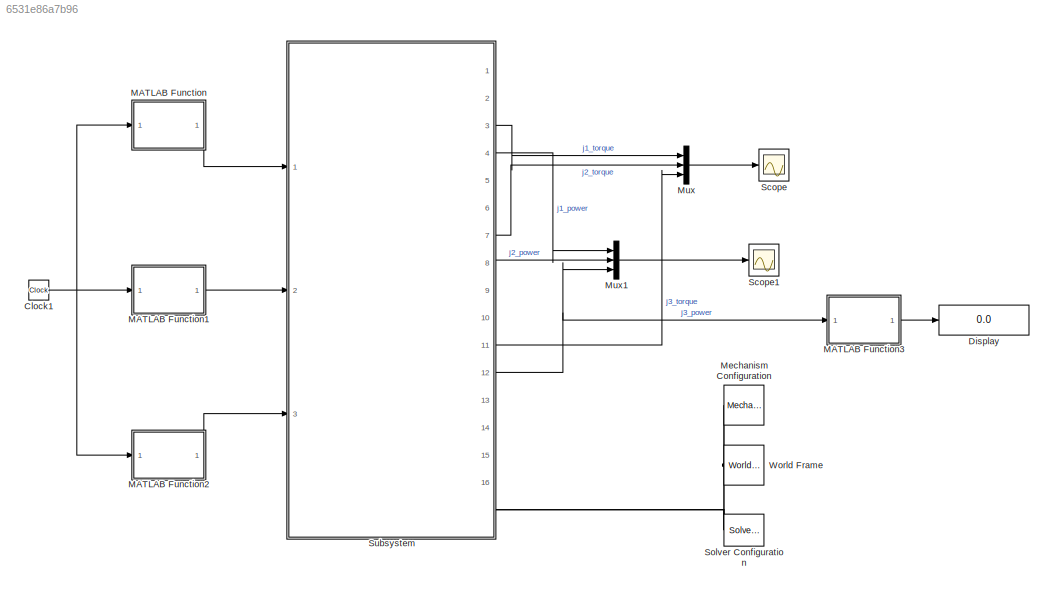
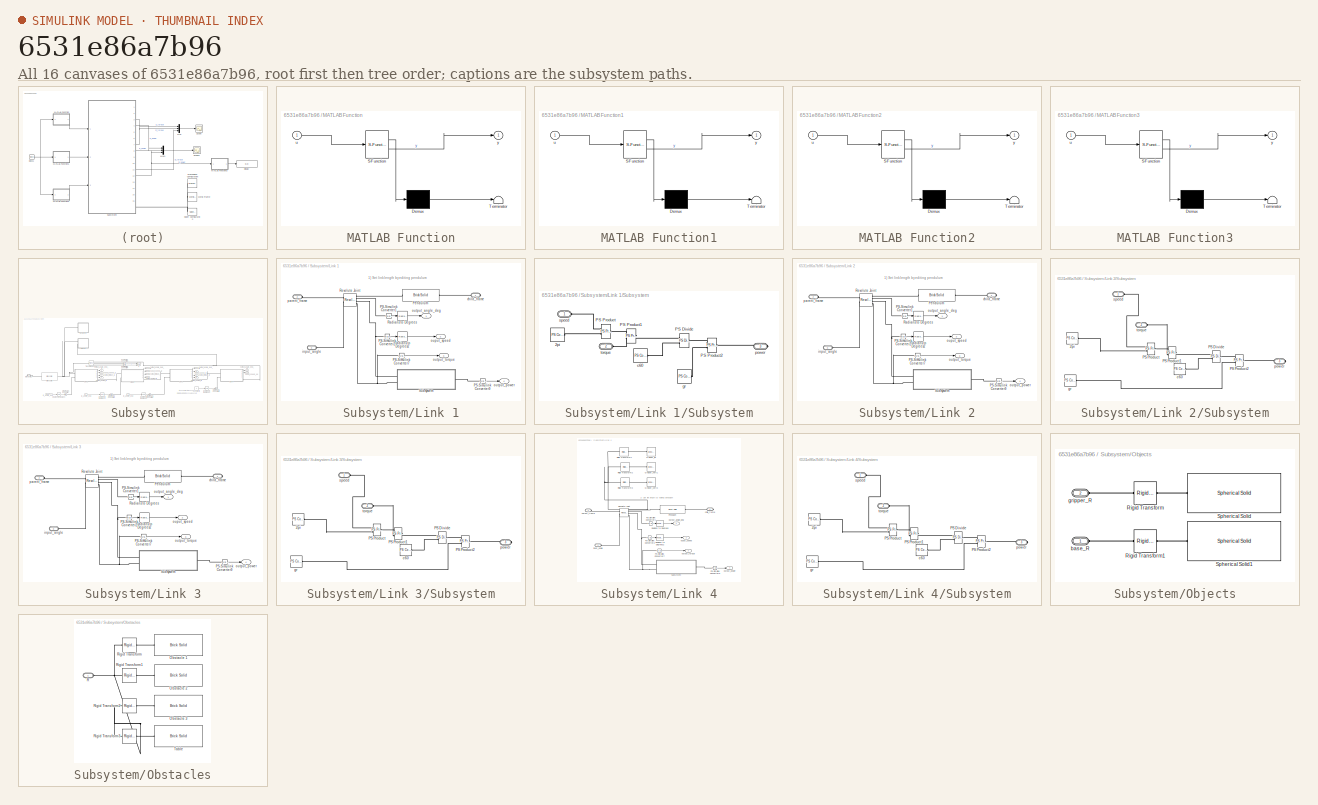
[diagram: thumbnail index - all 16 canvases of the model, root first then tree order]
MODEL slx_6531e86a7b96
KIND model
CONFIG AbsTol = 1e-3
CONFIG EnableMultiTasking = on
CONFIG FixedStep = auto
CONFIG MaxStep = 0.01
CONFIG MinStep = auto
CONFIG RelTol = 1e-3
CONFIG SampleTimeConstraint = Unconstrained
CONFIG SolverName = ode15s
CONFIG StartTime = 0.0
CONFIG StopTime = 3
BLOCK [Clock] Clock1
BLOCK [Display] Display
  Decimation = 1
  Ports = [1]
BLOCK [SubSystem] MATLAB Function
  ErrorFcn = Stateflow.Translate.translate
  PermitHierarchicalResolution = ExplicitOnly
  Ports = [1, 1]
  RequestExecContextInheritance = off
  SFBlockType = MATLAB Function
  TreatAsAtomicUnit = on
BLOCK [Demux] MATLAB Function/ Demux 
  Outputs = 1
  Ports = [1, 1]
BLOCK [S-Function] MATLAB Function/ SFunction 
  EnableBusSupport = on
  FunctionName = sf_sfun
  PortCounts = [1 2]
  Ports = [1, 2]
  SFcnIsStateOwnerBlock = off
  SFunctionDeploymentMode = off
  Tag = Stateflow S-Function 2
BLOCK [Terminator] MATLAB Function/ Terminator 
BLOCK [Inport] MATLAB Function/u
BLOCK [Outport] MATLAB Function/y
BLOCK [SubSystem] MATLAB Function1
  ErrorFcn = Stateflow.Translate.translate
  PermitHierarchicalResolution = ExplicitOnly
  Ports = [1, 1]
  RequestExecContextInheritance = off
  SFBlockType = MATLAB Function
  TreatAsAtomicUnit = on
BLOCK [Demux] MATLAB Function1/ Demux 
  Outputs = 1
  Ports = [1, 1]
BLOCK [S-Function] MATLAB Function1/ SFunction 
  EnableBusSupport = on
  FunctionName = sf_sfun
  PortCounts = [1 2]
  Ports = [1, 2]
  SFcnIsStateOwnerBlock = off
  SFunctionDeploymentMode = off
  Tag = Stateflow S-Function 1
BLOCK [Terminator] MATLAB Function1/ Terminator 
BLOCK [Inport] MATLAB Function1/u
BLOCK [Outport] MATLAB Function1/y
BLOCK [SubSystem] MATLAB Function2
  ErrorFcn = Stateflow.Translate.translate
  PermitHierarchicalResolution = ExplicitOnly
  Ports = [1, 1]
  RequestExecContextInheritance = off
  SFBlockType = MATLAB Function
  TreatAsAtomicUnit = on
BLOCK [Demux] MATLAB Function2/ Demux 
  Outputs = 1
  Ports = [1, 1]
BLOCK [S-Function] MATLAB Function2/ SFunction 
  EnableBusSupport = on
  FunctionName = sf_sfun
  PortCounts = [1 2]
  Ports = [1, 2]
  SFcnIsStateOwnerBlock = off
  SFunctionDeploymentMode = off
  Tag = Stateflow S-Function 3
BLOCK [Terminator] MATLAB Function2/ Terminator 
BLOCK [Inport] MATLAB Function2/u
BLOCK [Outport] MATLAB Function2/y
BLOCK [SubSystem] MATLAB Function3
  ErrorFcn = Stateflow.Translate.translate
  PermitHierarchicalResolution = ExplicitOnly
  Ports = [1, 1]
  RequestExecContextInheritance = off
  SFBlockType = MATLAB Function
  TreatAsAtomicUnit = on
BLOCK [Demux] MATLAB Function3/ Demux 
  Outputs = 1
  Ports = [1, 1]
BLOCK [S-Function] MATLAB Function3/ SFunction 
  EnableBusSupport = on
  FunctionName = sf_sfun
  PortCounts = [1 2]
  Ports = [1, 2]
  SFcnIsStateOwnerBlock = off
  SFunctionDeploymentMode = off
  Tag = Stateflow S-Function 4
BLOCK [Terminator] MATLAB Function3/ Terminator 
BLOCK [Inport] MATLAB Function3/u
BLOCK [Outport] MATLAB Function3/y
BLOCK [Reference] Mechanism Configuration  REF=sm_lib/Utilities/Mechanism
Configuration
  NameLocation = top
  Ports = [0, 0, 0, 0, 0, 0, 1]
  SourceBlock = sm_lib/Utilities/Mechanism\nConfiguration
  SourceProductBaseCode = MS
  SourceType = Mechanism\nConfiguration
BLOCK [Mux] Mux
  DisplayOption = bar
  Inputs = 3
  Ports = [3, 1]
BLOCK [Mux] Mux1
  DisplayOption = bar
  Inputs = 3
  Ports = [3, 1]
BLOCK [Scope] Scope
  Floating = off
  NumInputPorts = 1
  Ports = [1]
  ScopeSpecificationString = Simulink.scopes.TimeScopeBlockCfg('CurrentConfiguration', extmgr.ConfigurationSet(extmgr.Configuration('Core','General UI',true),extmgr.Configuration('Core','Source UI',true),extmgr.Configuration('Sources','WiredSimulink',true),extmgr.Configuration('Visuals','Time Domain',true,'SerializedDisplays',{struct('MinYLimReal','-227210.22681','MaxYLimReal','25250.35283','YLabelReal','','MinYLimMag','    0...<+1417ch>
BLOCK [Scope] Scope1
  Floating = off
  NumInputPorts = 1
  Ports = [1]
  ScopeSpecificationString = Simulink.scopes.TimeScopeBlockCfg('CurrentConfiguration', extmgr.ConfigurationSet(extmgr.Configuration('Core','General UI',true),extmgr.Configuration('Core','Source UI',true),extmgr.Configuration('Sources','WiredSimulink',true,'DataLoggingVariableName','ScopeData1'),extmgr.Configuration('Visuals','Time Domain',true,'SerializedDisplays',{struct('MinYLimReal','-726.47086','MaxYLimReal','938.98656','...<+1770ch>
BLOCK [Reference] Solver Configuration  REF=nesl_utility/Solver
Configuration
  NameLocation = top
  Ports = [0, 0, 0, 0, 0, 0, 1]
  SourceBlock = nesl_utility/Solver\nConfiguration
  SourceProductName = Utilities
  SourceType = Solver\nConfiguration
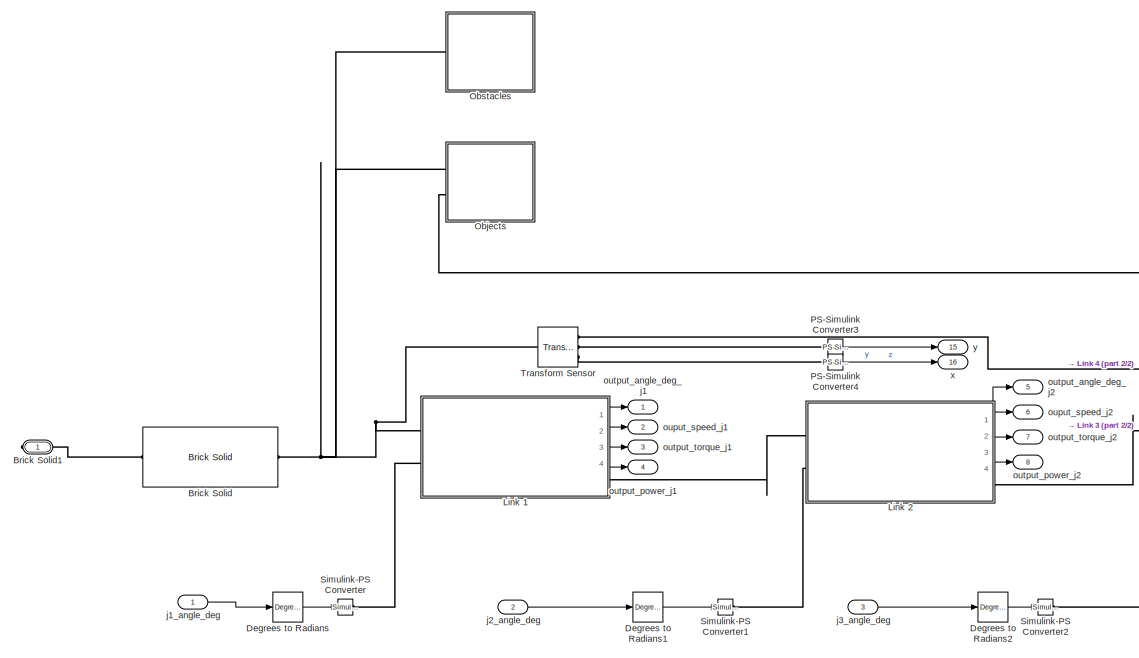
[diagram: Subsystem - part 1/2, left side, full height]
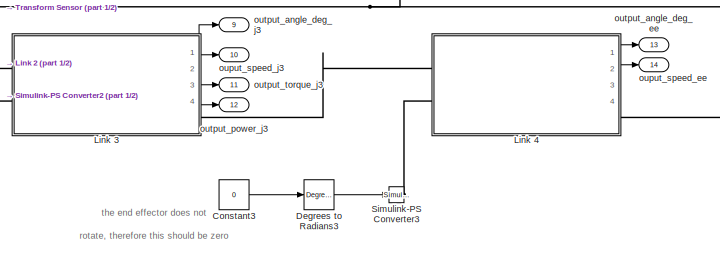
[diagram: Subsystem - part 2/2, bottom right region]
BLOCK [SubSystem] Subsystem
  Ports = [3, 16, 0, 0, 0, 0, 1]
  RequestExecContextInheritance = off
BLOCK [Reference] Subsystem/Brick Solid  REF=sm_lib/Body Elements/Brick Solid
  NameLocation = top
  Ports = [0, 0, 0, 0, 0, 1, 1]
  SourceBlock = sm_lib/Body Elements/Brick Solid
  SourceProductBaseCode = MS
  SourceType = Brick Solid
BLOCK [PMIOPort] Subsystem/Brick Solid1
  NameLocation = top
  Side = Right
BLOCK [Constant] Subsystem/Constant3
  Value = 0
BLOCK [Reference] Subsystem/Degrees to Radians  REF=simulink_extras/Transformations/Degrees to
Radians
  Ports = [1, 1]
  SourceBlock = simulink_extras/Transformations/Degrees to\nRadians
  SourceProductBaseCode = SL
  SourceType = DegreesToRadians
BLOCK [Reference] Subsystem/Degrees to Radians1  REF=simulink_extras/Transformations/Degrees to
Radians
  Ports = [1, 1]
  SourceBlock = simulink_extras/Transformations/Degrees to\nRadians
  SourceProductBaseCode = SL
  SourceType = DegreesToRadians
BLOCK [Reference] Subsystem/Degrees to Radians2  REF=simulink_extras/Transformations/Degrees to
Radians
  Ports = [1, 1]
  SourceBlock = simulink_extras/Transformations/Degrees to\nRadians
  SourceProductBaseCode = SL
  SourceType = DegreesToRadians
BLOCK [Reference] Subsystem/Degrees to Radians3  REF=simulink_extras/Transformations/Degrees to
Radians
  Ports = [1, 1]
  SourceBlock = simulink_extras/Transformations/Degrees to\nRadians
  SourceProductBaseCode = SL
  SourceType = DegreesToRadians
BLOCK [SubSystem] Subsystem/Link 1
  Ports = [0, 4, 0, 0, 0, 2, 1]
  RequestExecContextInheritance = off
BLOCK [Reference] Subsystem/Link 1/PS-Simulink Converter1  REF=nesl_utility/PS-Simulink
Converter
  Ports = [0, 1, 0, 0, 0, 1]
  SourceBlock = nesl_utility/PS-Simulink\nConverter
  SourceProductBaseCode = SS
  SourceType = PS-Simulink\nConverter
BLOCK [Reference] Subsystem/Link 1/PS-Simulink Converter2  REF=nesl_utility/PS-Simulink
Converter
  Ports = [0, 1, 0, 0, 0, 1]
  SourceBlock = nesl_utility/PS-Simulink\nConverter
  SourceProductBaseCode = SS
  SourceType = PS-Simulink\nConverter
BLOCK [Reference] Subsystem/Link 1/PS-Simulink Converter7  REF=nesl_utility/PS-Simulink
Converter
  Ports = [0, 1, 0, 0, 0, 1]
  SourceBlock = nesl_utility/PS-Simulink\nConverter
  SourceProductBaseCode = SS
  SourceType = PS-Simulink\nConverter
BLOCK [Reference] Subsystem/Link 1/PS-Simulink Converter9  REF=nesl_utility/PS-Simulink
Converter
  Ports = [0, 1, 0, 0, 0, 1]
  SourceBlock = nesl_utility/PS-Simulink\nConverter
  SourceProductBaseCode = SS
  SourceType = PS-Simulink\nConverter
BLOCK [Reference] Subsystem/Link 1/Pendulum  REF=sm_lib/Body Elements/Brick Solid
  Ports = [0, 0, 0, 0, 0, 1, 1]
  SourceBlock = sm_lib/Body Elements/Brick Solid
  SourceProductBaseCode = MS
  SourceType = Brick Solid
BLOCK [Reference] Subsystem/Link 1/Radians to Degrees  REF=simulink_extras/Transformations/Radians
to Degrees
  Ports = [1, 1]
  SourceBlock = simulink_extras/Transformations/Radians\nto Degrees
  SourceProductBaseCode = SL
  SourceType = RadiansToDegrees
BLOCK [Reference] Subsystem/Link 1/Radians to Degrees2  REF=simulink_extras/Transformations/Radians
to Degrees
  Ports = [1, 1]
  SourceBlock = simulink_extras/Transformations/Radians\nto Degrees
  SourceProductBaseCode = SL
  SourceType = RadiansToDegrees
BLOCK [Reference] Subsystem/Link 1/Revolute Joint  REF=sm_lib/Joints/Revolute Joint
  Ports = [0, 0, 0, 0, 0, 2, 4]
  SourceBlock = sm_lib/Joints/Revolute Joint
  SourceProductBaseCode = MS
  SourceType = Revolute Joint
BLOCK [SubSystem] Subsystem/Link 1/Subsystem
  Ports = [0, 0, 0, 0, 0, 2, 1]
  RequestExecContextInheritance = off
BLOCK [Reference] Subsystem/Link 1/Subsystem/2pi  REF=fl_lib/Physical Signals/Sources/PS Constant
  Ports = [0, 0, 0, 0, 0, 0, 1]
  SourceBlock = fl_lib/Physical Signals/Sources/PS Constant
  SourceProductBaseCode = SS
  SourceType = PS Constant
BLOCK [Reference] Subsystem/Link 1/Subsystem/PS Divide  REF=fl_lib/Physical Signals/Functions/PS Divide
  Ports = [0, 0, 0, 0, 0, 2, 1]
  SourceBlock = fl_lib/Physical Signals/Functions/PS Divide
  SourceProductBaseCode = SS
  SourceType = PS Divide
BLOCK [Reference] Subsystem/Link 1/Subsystem/PS Product  REF=fl_lib/Physical Signals/Functions/PS Product
  Ports = [0, 0, 0, 0, 0, 2, 1]
  SourceBlock = fl_lib/Physical Signals/Functions/PS Product
  SourceProductBaseCode = SS
  SourceType = PS Product
BLOCK [Reference] Subsystem/Link 1/Subsystem/PS Product1  REF=fl_lib/Physical Signals/Functions/PS Product
  Ports = [0, 0, 0, 0, 0, 2, 1]
  SourceBlock = fl_lib/Physical Signals/Functions/PS Product
  SourceProductBaseCode = SS
  SourceType = PS Product
BLOCK [Reference] Subsystem/Link 1/Subsystem/PS Product2  REF=fl_lib/Physical Signals/Functions/PS Product
  Ports = [0, 0, 0, 0, 0, 2, 1]
  SourceBlock = fl_lib/Physical Signals/Functions/PS Product
  SourceProductBaseCode = SS
  SourceType = PS Product
BLOCK [Reference] Subsystem/Link 1/Subsystem/c60  REF=fl_lib/Physical Signals/Sources/PS Constant
  Ports = [0, 0, 0, 0, 0, 0, 1]
  SourceBlock = fl_lib/Physical Signals/Sources/PS Constant
  SourceProductBaseCode = SS
  SourceType = PS Constant
BLOCK [Reference] Subsystem/Link 1/Subsystem/gr  REF=fl_lib/Physical Signals/Sources/PS Constant
  Ports = [0, 0, 0, 0, 0, 0, 1]
  SourceBlock = fl_lib/Physical Signals/Sources/PS Constant
  SourceProductBaseCode = SS
  SourceType = PS Constant
BLOCK [PMIOPort] Subsystem/Link 1/Subsystem/power
  Port = 3
  Side = Right
BLOCK [PMIOPort] Subsystem/Link 1/Subsystem/speed
  Side = Left
BLOCK [PMIOPort] Subsystem/Link 1/Subsystem/torque
  Port = 2
  Side = Left
BLOCK [PMIOPort] Subsystem/Link 1/child_frame
  Side = Right
BLOCK [PMIOPort] Subsystem/Link 1/input_angle
  Port = 3
  Side = Left
BLOCK [Outport] Subsystem/Link 1/ouput_speed
  Port = 2
BLOCK [Outport] Subsystem/Link 1/output_angle_deg
BLOCK [Outport] Subsystem/Link 1/output_power
  Port = 4
BLOCK [Outport] Subsystem/Link 1/output_torque
  Port = 3
BLOCK [PMIOPort] Subsystem/Link 1/parent_frame
  Port = 2
  Side = Left
BLOCK [SubSystem] Subsystem/Link 2
  Ports = [0, 4, 0, 0, 0, 2, 1]
  RequestExecContextInheritance = off
BLOCK [Reference] Subsystem/Link 2/PS-Simulink Converter1  REF=nesl_utility/PS-Simulink
Converter
  Ports = [0, 1, 0, 0, 0, 1]
  SourceBlock = nesl_utility/PS-Simulink\nConverter
  SourceProductBaseCode = SS
  SourceType = PS-Simulink\nConverter
BLOCK [Reference] Subsystem/Link 2/PS-Simulink Converter2  REF=nesl_utility/PS-Simulink
Converter
  Ports = [0, 1, 0, 0, 0, 1]
  SourceBlock = nesl_utility/PS-Simulink\nConverter
  SourceProductBaseCode = SS
  SourceType = PS-Simulink\nConverter
BLOCK [Reference] Subsystem/Link 2/PS-Simulink Converter7  REF=nesl_utility/PS-Simulink
Converter
  Ports = [0, 1, 0, 0, 0, 1]
  SourceBlock = nesl_utility/PS-Simulink\nConverter
  SourceProductBaseCode = SS
  SourceType = PS-Simulink\nConverter
BLOCK [Reference] Subsystem/Link 2/PS-Simulink Converter9  REF=nesl_utility/PS-Simulink
Converter
  Ports = [0, 1, 0, 0, 0, 1]
  SourceBlock = nesl_utility/PS-Simulink\nConverter
  SourceProductBaseCode = SS
  SourceType = PS-Simulink\nConverter
BLOCK [Reference] Subsystem/Link 2/Pendulum  REF=sm_lib/Body Elements/Brick Solid
  Ports = [0, 0, 0, 0, 0, 1, 1]
  SourceBlock = sm_lib/Body Elements/Brick Solid
  SourceProductBaseCode = MS
  SourceType = Brick Solid
BLOCK [Reference] Subsystem/Link 2/Radians to Degrees  REF=simulink_extras/Transformations/Radians
to Degrees
  Ports = [1, 1]
  SourceBlock = simulink_extras/Transformations/Radians\nto Degrees
  SourceProductBaseCode = SL
  SourceType = RadiansToDegrees
BLOCK [Reference] Subsystem/Link 2/Radians to Degrees2  REF=simulink_extras/Transformations/Radians
to Degrees
  Ports = [1, 1]
  SourceBlock = simulink_extras/Transformations/Radians\nto Degrees
  SourceProductBaseCode = SL
  SourceType = RadiansToDegrees
BLOCK [Reference] Subsystem/Link 2/Revolute Joint  REF=sm_lib/Joints/Revolute Joint
  Ports = [0, 0, 0, 0, 0, 2, 4]
  SourceBlock = sm_lib/Joints/Revolute Joint
  SourceProductBaseCode = MS
  SourceType = Revolute Joint
BLOCK [SubSystem] Subsystem/Link 2/Subsystem
  Ports = [0, 0, 0, 0, 0, 2, 1]
  RequestExecContextInheritance = off
BLOCK [Reference] Subsystem/Link 2/Subsystem/2pi  REF=fl_lib/Physical Signals/Sources/PS Constant
  Ports = [0, 0, 0, 0, 0, 0, 1]
  SourceBlock = fl_lib/Physical Signals/Sources/PS Constant
  SourceProductBaseCode = SS
  SourceType = PS Constant
BLOCK [Reference] Subsystem/Link 2/Subsystem/PS Divide  REF=fl_lib/Physical Signals/Functions/PS Divide
  Ports = [0, 0, 0, 0, 0, 2, 1]
  SourceBlock = fl_lib/Physical Signals/Functions/PS Divide
  SourceProductBaseCode = SS
  SourceType = PS Divide
BLOCK [Reference] Subsystem/Link 2/Subsystem/PS Product  REF=fl_lib/Physical Signals/Functions/PS Product
  Ports = [0, 0, 0, 0, 0, 2, 1]
  SourceBlock = fl_lib/Physical Signals/Functions/PS Product
  SourceProductBaseCode = SS
  SourceType = PS Product
BLOCK [Reference] Subsystem/Link 2/Subsystem/PS Product1  REF=fl_lib/Physical Signals/Functions/PS Product
  Ports = [0, 0, 0, 0, 0, 2, 1]
  SourceBlock = fl_lib/Physical Signals/Functions/PS Product
  SourceProductBaseCode = SS
  SourceType = PS Product
BLOCK [Reference] Subsystem/Link 2/Subsystem/PS Product2  REF=fl_lib/Physical Signals/Functions/PS Product
  Ports = [0, 0, 0, 0, 0, 2, 1]
  SourceBlock = fl_lib/Physical Signals/Functions/PS Product
  SourceProductBaseCode = SS
  SourceType = PS Product
BLOCK [Reference] Subsystem/Link 2/Subsystem/c60  REF=fl_lib/Physical Signals/Sources/PS Constant
  Ports = [0, 0, 0, 0, 0, 0, 1]
  SourceBlock = fl_lib/Physical Signals/Sources/PS Constant
  SourceProductBaseCode = SS
  SourceType = PS Constant
BLOCK [Reference] Subsystem/Link 2/Subsystem/gr  REF=fl_lib/Physical Signals/Sources/PS Constant
  Ports = [0, 0, 0, 0, 0, 0, 1]
  SourceBlock = fl_lib/Physical Signals/Sources/PS Constant
  SourceProductBaseCode = SS
  SourceType = PS Constant
BLOCK [PMIOPort] Subsystem/Link 2/Subsystem/power
  Port = 3
  Side = Right
BLOCK [PMIOPort] Subsystem/Link 2/Subsystem/speed
  Side = Left
BLOCK [PMIOPort] Subsystem/Link 2/Subsystem/torque
  Port = 2
  Side = Left
BLOCK [PMIOPort] Subsystem/Link 2/child_frame
  Side = Right
BLOCK [PMIOPort] Subsystem/Link 2/input_angle
  Port = 3
  Side = Left
BLOCK [Outport] Subsystem/Link 2/ouput_speed
  Port = 2
BLOCK [Outport] Subsystem/Link 2/output_angle_deg
BLOCK [Outport] Subsystem/Link 2/output_power
  Port = 4
BLOCK [Outport] Subsystem/Link 2/output_torque
  Port = 3
BLOCK [PMIOPort] Subsystem/Link 2/parent_frame
  Port = 2
  Side = Left
BLOCK [SubSystem] Subsystem/Link 3
  Ports = [0, 4, 0, 0, 0, 2, 1]
  RequestExecContextInheritance = off
BLOCK [Reference] Subsystem/Link 3/PS-Simulink Converter1  REF=nesl_utility/PS-Simulink
Converter
  Ports = [0, 1, 0, 0, 0, 1]
  SourceBlock = nesl_utility/PS-Simulink\nConverter
  SourceProductBaseCode = SS
  SourceType = PS-Simulink\nConverter
BLOCK [Reference] Subsystem/Link 3/PS-Simulink Converter2  REF=nesl_utility/PS-Simulink
Converter
  Ports = [0, 1, 0, 0, 0, 1]
  SourceBlock = nesl_utility/PS-Simulink\nConverter
  SourceProductBaseCode = SS
  SourceType = PS-Simulink\nConverter
BLOCK [Reference] Subsystem/Link 3/PS-Simulink Converter7  REF=nesl_utility/PS-Simulink
Converter
  Ports = [0, 1, 0, 0, 0, 1]
  SourceBlock = nesl_utility/PS-Simulink\nConverter
  SourceProductBaseCode = SS
  SourceType = PS-Simulink\nConverter
BLOCK [Reference] Subsystem/Link 3/PS-Simulink Converter9  REF=nesl_utility/PS-Simulink
Converter
  Ports = [0, 1, 0, 0, 0, 1]
  SourceBlock = nesl_utility/PS-Simulink\nConverter
  SourceProductBaseCode = SS
  SourceType = PS-Simulink\nConverter
BLOCK [Reference] Subsystem/Link 3/Pendulum  REF=sm_lib/Body Elements/Brick Solid
  Ports = [0, 0, 0, 0, 0, 1, 1]
  SourceBlock = sm_lib/Body Elements/Brick Solid
  SourceProductBaseCode = MS
  SourceType = Brick Solid
BLOCK [Reference] Subsystem/Link 3/Radians to Degrees  REF=simulink_extras/Transformations/Radians
to Degrees
  Ports = [1, 1]
  SourceBlock = simulink_extras/Transformations/Radians\nto Degrees
  SourceProductBaseCode = SL
  SourceType = RadiansToDegrees
BLOCK [Reference] Subsystem/Link 3/Radians to Degrees2  REF=simulink_extras/Transformations/Radians
to Degrees
  Ports = [1, 1]
  SourceBlock = simulink_extras/Transformations/Radians\nto Degrees
  SourceProductBaseCode = SL
  SourceType = RadiansToDegrees
BLOCK [Reference] Subsystem/Link 3/Revolute Joint  REF=sm_lib/Joints/Revolute Joint
  Ports = [0, 0, 0, 0, 0, 2, 4]
  SourceBlock = sm_lib/Joints/Revolute Joint
  SourceProductBaseCode = MS
  SourceType = Revolute Joint
BLOCK [SubSystem] Subsystem/Link 3/Subsystem
  Ports = [0, 0, 0, 0, 0, 2, 1]
  RequestExecContextInheritance = off
BLOCK [Reference] Subsystem/Link 3/Subsystem/2pi  REF=fl_lib/Physical Signals/Sources/PS Constant
  Ports = [0, 0, 0, 0, 0, 0, 1]
  SourceBlock = fl_lib/Physical Signals/Sources/PS Constant
  SourceProductBaseCode = SS
  SourceType = PS Constant
BLOCK [Reference] Subsystem/Link 3/Subsystem/PS Divide  REF=fl_lib/Physical Signals/Functions/PS Divide
  Ports = [0, 0, 0, 0, 0, 2, 1]
  SourceBlock = fl_lib/Physical Signals/Functions/PS Divide
  SourceProductBaseCode = SS
  SourceType = PS Divide
BLOCK [Reference] Subsystem/Link 3/Subsystem/PS Product  REF=fl_lib/Physical Signals/Functions/PS Product
  Ports = [0, 0, 0, 0, 0, 2, 1]
  SourceBlock = fl_lib/Physical Signals/Functions/PS Product
  SourceProductBaseCode = SS
  SourceType = PS Product
BLOCK [Reference] Subsystem/Link 3/Subsystem/PS Product1  REF=fl_lib/Physical Signals/Functions/PS Product
  Ports = [0, 0, 0, 0, 0, 2, 1]
  SourceBlock = fl_lib/Physical Signals/Functions/PS Product
  SourceProductBaseCode = SS
  SourceType = PS Product
BLOCK [Reference] Subsystem/Link 3/Subsystem/PS Product2  REF=fl_lib/Physical Signals/Functions/PS Product
  Ports = [0, 0, 0, 0, 0, 2, 1]
  SourceBlock = fl_lib/Physical Signals/Functions/PS Product
  SourceProductBaseCode = SS
  SourceType = PS Product
BLOCK [Reference] Subsystem/Link 3/Subsystem/c60  REF=fl_lib/Physical Signals/Sources/PS Constant
  Ports = [0, 0, 0, 0, 0, 0, 1]
  SourceBlock = fl_lib/Physical Signals/Sources/PS Constant
  SourceProductBaseCode = SS
  SourceType = PS Constant
BLOCK [Reference] Subsystem/Link 3/Subsystem/gr  REF=fl_lib/Physical Signals/Sources/PS Constant
  Ports = [0, 0, 0, 0, 0, 0, 1]
  SourceBlock = fl_lib/Physical Signals/Sources/PS Constant
  SourceProductBaseCode = SS
  SourceType = PS Constant
BLOCK [PMIOPort] Subsystem/Link 3/Subsystem/power
  Port = 3
  Side = Right
BLOCK [PMIOPort] Subsystem/Link 3/Subsystem/speed
  Side = Left
BLOCK [PMIOPort] Subsystem/Link 3/Subsystem/torque
  Port = 2
  Side = Left
BLOCK [PMIOPort] Subsystem/Link 3/child_frame
  Side = Right
BLOCK [PMIOPort] Subsystem/Link 3/input_angle
  Port = 3
  Side = Left
BLOCK [Outport] Subsystem/Link 3/ouput_speed
  Port = 2
BLOCK [Outport] Subsystem/Link 3/output_angle_deg
BLOCK [Outport] Subsystem/Link 3/output_power
  Port = 4
BLOCK [Outport] Subsystem/Link 3/output_torque
  Port = 3
BLOCK [PMIOPort] Subsystem/Link 3/parent_frame
  Port = 2
  Side = Left
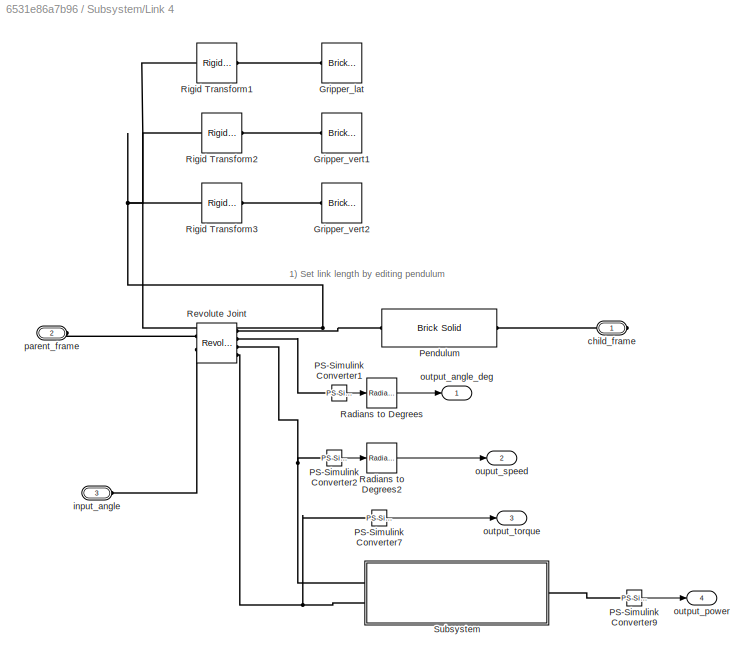
BLOCK [SubSystem] Subsystem/Link 4
  Ports = [0, 4, 0, 0, 0, 2, 1]
  RequestExecContextInheritance = off
BLOCK [Reference] Subsystem/Link 4/Gripper_lat  REF=sm_lib/Body Elements/Brick Solid
  NameLocation = top
  Ports = [0, 0, 0, 0, 0, 0, 1]
  SourceBlock = sm_lib/Body Elements/Brick Solid
  SourceProductBaseCode = MS
  SourceType = Brick Solid
BLOCK [Reference] Subsystem/Link 4/Gripper_vert1  REF=sm_lib/Body Elements/Brick Solid
  NameLocation = top
  Ports = [0, 0, 0, 0, 0, 0, 1]
  SourceBlock = sm_lib/Body Elements/Brick Solid
  SourceProductBaseCode = MS
  SourceType = Brick Solid
BLOCK [Reference] Subsystem/Link 4/Gripper_vert2  REF=sm_lib/Body Elements/Brick Solid
  NameLocation = top
  Ports = [0, 0, 0, 0, 0, 0, 1]
  SourceBlock = sm_lib/Body Elements/Brick Solid
  SourceProductBaseCode = MS
  SourceType = Brick Solid
BLOCK [Reference] Subsystem/Link 4/PS-Simulink Converter1  REF=nesl_utility/PS-Simulink
Converter
  Ports = [0, 1, 0, 0, 0, 1]
  SourceBlock = nesl_utility/PS-Simulink\nConverter
  SourceProductBaseCode = SS
  SourceType = PS-Simulink\nConverter
BLOCK [Reference] Subsystem/Link 4/PS-Simulink Converter2  REF=nesl_utility/PS-Simulink
Converter
  Ports = [0, 1, 0, 0, 0, 1]
  SourceBlock = nesl_utility/PS-Simulink\nConverter
  SourceProductBaseCode = SS
  SourceType = PS-Simulink\nConverter
BLOCK [Reference] Subsystem/Link 4/PS-Simulink Converter7  REF=nesl_utility/PS-Simulink
Converter
  Ports = [0, 1, 0, 0, 0, 1]
  SourceBlock = nesl_utility/PS-Simulink\nConverter
  SourceProductBaseCode = SS
  SourceType = PS-Simulink\nConverter
BLOCK [Reference] Subsystem/Link 4/PS-Simulink Converter9  REF=nesl_utility/PS-Simulink
Converter
  Ports = [0, 1, 0, 0, 0, 1]
  SourceBlock = nesl_utility/PS-Simulink\nConverter
  SourceProductBaseCode = SS
  SourceType = PS-Simulink\nConverter
BLOCK [Reference] Subsystem/Link 4/Pendulum  REF=sm_lib/Body Elements/Brick Solid
  Ports = [0, 0, 0, 0, 0, 1, 1]
  SourceBlock = sm_lib/Body Elements/Brick Solid
  SourceProductBaseCode = MS
  SourceType = Brick Solid
BLOCK [Reference] Subsystem/Link 4/Radians to Degrees  REF=simulink_extras/Transformations/Radians
to Degrees
  Ports = [1, 1]
  SourceBlock = simulink_extras/Transformations/Radians\nto Degrees
  SourceProductBaseCode = SL
  SourceType = RadiansToDegrees
BLOCK [Reference] Subsystem/Link 4/Radians to Degrees2  REF=simulink_extras/Transformations/Radians
to Degrees
  Ports = [1, 1]
  SourceBlock = simulink_extras/Transformations/Radians\nto Degrees
  SourceProductBaseCode = SL
  SourceType = RadiansToDegrees
BLOCK [Reference] Subsystem/Link 4/Revolute Joint  REF=sm_lib/Joints/Revolute Joint
  Ports = [0, 0, 0, 0, 0, 2, 4]
  SourceBlock = sm_lib/Joints/Revolute Joint
  SourceProductBaseCode = MS
  SourceType = Revolute Joint
BLOCK [Reference] Subsystem/Link 4/Rigid Transform1  REF=sm_lib/Frames and
Transforms/Rigid
Transform
  Ports = [0, 0, 0, 0, 0, 1, 1]
  SourceBlock = sm_lib/Frames and\nTransforms/Rigid\nTransform
  SourceProductBaseCode = MS
  SourceType = Rigid\nTransform
BLOCK [Reference] Subsystem/Link 4/Rigid Transform2  REF=sm_lib/Frames and
Transforms/Rigid
Transform
  Ports = [0, 0, 0, 0, 0, 1, 1]
  SourceBlock = sm_lib/Frames and\nTransforms/Rigid\nTransform
  SourceProductBaseCode = MS
  SourceType = Rigid\nTransform
BLOCK [Reference] Subsystem/Link 4/Rigid Transform3  REF=sm_lib/Frames and
Transforms/Rigid
Transform
  Ports = [0, 0, 0, 0, 0, 1, 1]
  SourceBlock = sm_lib/Frames and\nTransforms/Rigid\nTransform
  SourceProductBaseCode = MS
  SourceType = Rigid\nTransform
BLOCK [SubSystem] Subsystem/Link 4/Subsystem
  Ports = [0, 0, 0, 0, 0, 2, 1]
  RequestExecContextInheritance = off
BLOCK [Reference] Subsystem/Link 4/Subsystem/2pi  REF=fl_lib/Physical Signals/Sources/PS Constant
  Ports = [0, 0, 0, 0, 0, 0, 1]
  SourceBlock = fl_lib/Physical Signals/Sources/PS Constant
  SourceProductBaseCode = SS
  SourceType = PS Constant
BLOCK [Reference] Subsystem/Link 4/Subsystem/PS Divide  REF=fl_lib/Physical Signals/Functions/PS Divide
  Ports = [0, 0, 0, 0, 0, 2, 1]
  SourceBlock = fl_lib/Physical Signals/Functions/PS Divide
  SourceProductBaseCode = SS
  SourceType = PS Divide
BLOCK [Reference] Subsystem/Link 4/Subsystem/PS Product  REF=fl_lib/Physical Signals/Functions/PS Product
  Ports = [0, 0, 0, 0, 0, 2, 1]
  SourceBlock = fl_lib/Physical Signals/Functions/PS Product
  SourceProductBaseCode = SS
  SourceType = PS Product
BLOCK [Reference] Subsystem/Link 4/Subsystem/PS Product1  REF=fl_lib/Physical Signals/Functions/PS Product
  Ports = [0, 0, 0, 0, 0, 2, 1]
  SourceBlock = fl_lib/Physical Signals/Functions/PS Product
  SourceProductBaseCode = SS
  SourceType = PS Product
BLOCK [Reference] Subsystem/Link 4/Subsystem/PS Product2  REF=fl_lib/Physical Signals/Functions/PS Product
  Ports = [0, 0, 0, 0, 0, 2, 1]
  SourceBlock = fl_lib/Physical Signals/Functions/PS Product
  SourceProductBaseCode = SS
  SourceType = PS Product
BLOCK [Reference] Subsystem/Link 4/Subsystem/c60  REF=fl_lib/Physical Signals/Sources/PS Constant
  Ports = [0, 0, 0, 0, 0, 0, 1]
  SourceBlock = fl_lib/Physical Signals/Sources/PS Constant
  SourceProductBaseCode = SS
  SourceType = PS Constant
BLOCK [Reference] Subsystem/Link 4/Subsystem/gr  REF=fl_lib/Physical Signals/Sources/PS Constant
  Ports = [0, 0, 0, 0, 0, 0, 1]
  SourceBlock = fl_lib/Physical Signals/Sources/PS Constant
  SourceProductBaseCode = SS
  SourceType = PS Constant
BLOCK [PMIOPort] Subsystem/Link 4/Subsystem/power
  Port = 3
  Side = Right
BLOCK [PMIOPort] Subsystem/Link 4/Subsystem/speed
  Side = Left
BLOCK [PMIOPort] Subsystem/Link 4/Subsystem/torque
  Port = 2
  Side = Left
BLOCK [PMIOPort] Subsystem/Link 4/child_frame
  Side = Right
BLOCK [PMIOPort] Subsystem/Link 4/input_angle
  Port = 3
  Side = Left
BLOCK [Outport] Subsystem/Link 4/ouput_speed
  Port = 2
BLOCK [Outport] Subsystem/Link 4/output_angle_deg
BLOCK [Outport] Subsystem/Link 4/output_power
  Port = 4
BLOCK [Outport] Subsystem/Link 4/output_torque
  Port = 3
BLOCK [PMIOPort] Subsystem/Link 4/parent_frame
  Port = 2
  Side = Left
BLOCK [SubSystem] Subsystem/Objects
  Ports = [0, 0, 0, 0, 0, 2]
  RequestExecContextInheritance = off
BLOCK [Reference] Subsystem/Objects/Rigid Transform  REF=sm_lib/Frames and
Transforms/Rigid
Transform
  Ports = [0, 0, 0, 0, 0, 1, 1]
  SourceBlock = sm_lib/Frames and\nTransforms/Rigid\nTransform
  SourceProductBaseCode = MS
  SourceType = Rigid\nTransform
BLOCK [Reference] Subsystem/Objects/Rigid Transform1  REF=sm_lib/Frames and
Transforms/Rigid
Transform
  Ports = [0, 0, 0, 0, 0, 1, 1]
  SourceBlock = sm_lib/Frames and\nTransforms/Rigid\nTransform
  SourceProductBaseCode = MS
  SourceType = Rigid\nTransform
BLOCK [Reference] Subsystem/Objects/Spherical Solid  REF=sm_lib/Body Elements/Spherical Solid
  NameLocation = top
  Ports = [0, 0, 0, 0, 0, 1, 1]
  SourceBlock = sm_lib/Body Elements/Spherical Solid
  SourceProductBaseCode = MS
  SourceType = Spherical Solid
BLOCK [Reference] Subsystem/Objects/Spherical Solid1  REF=sm_lib/Body Elements/Spherical Solid
  NameLocation = top
  Ports = [0, 0, 0, 0, 0, 1, 1]
  SourceBlock = sm_lib/Body Elements/Spherical Solid
  SourceProductBaseCode = MS
  SourceType = Spherical Solid
BLOCK [PMIOPort] Subsystem/Objects/base_R
  Side = Left
BLOCK [PMIOPort] Subsystem/Objects/gripper_R
  Port = 2
  Side = Left
BLOCK [SubSystem] Subsystem/Obstacles
  Ports = [0, 0, 0, 0, 0, 1]
  RequestExecContextInheritance = off
BLOCK [Reference] Subsystem/Obstacles/Obstacle 1  REF=sm_lib/Body Elements/Brick Solid
  NameLocation = top
  Ports = [0, 0, 0, 0, 0, 1, 1]
  SourceBlock = sm_lib/Body Elements/Brick Solid
  SourceProductBaseCode = MS
  SourceType = Brick Solid
BLOCK [Reference] Subsystem/Obstacles/Obstacle 2  REF=sm_lib/Body Elements/Brick Solid
  NameLocation = top
  Ports = [0, 0, 0, 0, 0, 1, 1]
  SourceBlock = sm_lib/Body Elements/Brick Solid
  SourceProductBaseCode = MS
  SourceType = Brick Solid
BLOCK [Reference] Subsystem/Obstacles/Obstacle 3  REF=sm_lib/Body Elements/Brick Solid
  NameLocation = top
  Ports = [0, 0, 0, 0, 0, 1, 1]
  SourceBlock = sm_lib/Body Elements/Brick Solid
  SourceProductBaseCode = MS
  SourceType = Brick Solid
BLOCK [PMIOPort] Subsystem/Obstacles/R
  Side = Left
BLOCK [Reference] Subsystem/Obstacles/Rigid Transform  REF=sm_lib/Frames and
Transforms/Rigid
Transform
  Ports = [0, 0, 0, 0, 0, 1, 1]
  SourceBlock = sm_lib/Frames and\nTransforms/Rigid\nTransform
  SourceProductBaseCode = MS
  SourceType = Rigid\nTransform
BLOCK [Reference] Subsystem/Obstacles/Rigid Transform1  REF=sm_lib/Frames and
Transforms/Rigid
Transform
  Ports = [0, 0, 0, 0, 0, 1, 1]
  SourceBlock = sm_lib/Frames and\nTransforms/Rigid\nTransform
  SourceProductBaseCode = MS
  SourceType = Rigid\nTransform
BLOCK [Reference] Subsystem/Obstacles/Rigid Transform2  REF=sm_lib/Frames and
Transforms/Rigid
Transform
  Ports = [0, 0, 0, 0, 0, 1, 1]
  SourceBlock = sm_lib/Frames and\nTransforms/Rigid\nTransform
  SourceProductBaseCode = MS
  SourceType = Rigid\nTransform
BLOCK [Reference] Subsystem/Obstacles/Rigid Transform3  REF=sm_lib/Frames and
Transforms/Rigid
Transform
  Ports = [0, 0, 0, 0, 0, 1, 1]
  SourceBlock = sm_lib/Frames and\nTransforms/Rigid\nTransform
  SourceProductBaseCode = MS
  SourceType = Rigid\nTransform
BLOCK [Reference] Subsystem/Obstacles/Table  REF=sm_lib/Body Elements/Brick Solid
  NameLocation = top
  Ports = [0, 0, 0, 0, 0, 1, 1]
  SourceBlock = sm_lib/Body Elements/Brick Solid
  SourceProductBaseCode = MS
  SourceType = Brick Solid
BLOCK [Reference] Subsystem/PS-Simulink Converter3  REF=nesl_utility/PS-Simulink
Converter
  Ports = [0, 1, 0, 0, 0, 1]
  SourceBlock = nesl_utility/PS-Simulink\nConverter
  SourceProductBaseCode = SS
  SourceType = PS-Simulink\nConverter
BLOCK [Reference] Subsystem/PS-Simulink Converter4  REF=nesl_utility/PS-Simulink
Converter
  Ports = [0, 1, 0, 0, 0, 1]
  SourceBlock = nesl_utility/PS-Simulink\nConverter
  SourceProductBaseCode = SS
  SourceType = PS-Simulink\nConverter
BLOCK [Reference] Subsystem/Simulink-PS Converter  REF=nesl_utility/Simulink-PS
Converter
  Ports = [1, 0, 0, 0, 0, 0, 1]
  SourceBlock = nesl_utility/Simulink-PS\nConverter
  SourceProductBaseCode = SS
  SourceType = Simulink-PS\nConverter
BLOCK [Reference] Subsystem/Simulink-PS Converter1  REF=nesl_utility/Simulink-PS
Converter
  Ports = [1, 0, 0, 0, 0, 0, 1]
  SourceBlock = nesl_utility/Simulink-PS\nConverter
  SourceProductBaseCode = SS
  SourceType = Simulink-PS\nConverter
BLOCK [Reference] Subsystem/Simulink-PS Converter2  REF=nesl_utility/Simulink-PS
Converter
  Ports = [1, 0, 0, 0, 0, 0, 1]
  SourceBlock = nesl_utility/Simulink-PS\nConverter
  SourceProductBaseCode = SS
  SourceType = Simulink-PS\nConverter
BLOCK [Reference] Subsystem/Simulink-PS Converter3  REF=nesl_utility/Simulink-PS
Converter
  Ports = [1, 0, 0, 0, 0, 0, 1]
  SourceBlock = nesl_utility/Simulink-PS\nConverter
  SourceProductBaseCode = SS
  SourceType = Simulink-PS\nConverter
BLOCK [Reference] Subsystem/Transform Sensor  REF=sm_lib/Frames and
Transforms/Transform
Sensor
  Ports = [0, 0, 0, 0, 0, 1, 3]
  SourceBlock = sm_lib/Frames and\nTransforms/Transform\nSensor
  SourceProductBaseCode = MS
  SourceType = Transform\nSensor
BLOCK [Inport] Subsystem/j1_angle_deg
BLOCK [Inport] Subsystem/j2_angle_deg
  Port = 2
BLOCK [Inport] Subsystem/j3_angle_deg
  Port = 3
BLOCK [Outport] Subsystem/ouput_speed_ee
  NameLocation = right
  Port = 14
BLOCK [Outport] Subsystem/ouput_speed_j1
  NameLocation = right
  Port = 2
BLOCK [Outport] Subsystem/ouput_speed_j2
  NameLocation = right
  Port = 6
BLOCK [Outport] Subsystem/ouput_speed_j3
  NameLocation = right
  Port = 10
BLOCK [Outport] Subsystem/output_angle_deg_ee
  NameLocation = right
  Port = 13
BLOCK [Outport] Subsystem/output_angle_deg_j1
  NameLocation = right
BLOCK [Outport] Subsystem/output_angle_deg_j2
  NameLocation = right
  Port = 5
BLOCK [Outport] Subsystem/output_angle_deg_j3
  NameLocation = right
  Port = 9
BLOCK [Outport] Subsystem/output_power_j1
  NameLocation = right
  Port = 4
BLOCK [Outport] Subsystem/output_power_j2
  NameLocation = right
  Port = 8
BLOCK [Outport] Subsystem/output_power_j3
  NameLocation = right
  Port = 12
BLOCK [Outport] Subsystem/output_torque_j1
  NameLocation = right
  Port = 3
BLOCK [Outport] Subsystem/output_torque_j2
  NameLocation = right
  Port = 7
BLOCK [Outport] Subsystem/output_torque_j3
  NameLocation = right
  Port = 11
BLOCK [Outport] Subsystem/x
  Port = 16
BLOCK [Outport] Subsystem/y
  Port = 15
BLOCK [Reference] World Frame  REF=sm_lib/Frames and
Transforms/World Frame
  NameLocation = top
  Ports = [0, 0, 0, 0, 0, 0, 1]
  SourceBlock = sm_lib/Frames and\nTransforms/World Frame
  SourceProductName = Multibody
  SourceType = World Frame
ANNOTATION Subsystem: the end effector does not rotate, therefore this should be zero
ANNOTATION Subsystem/Link 1: 1) Set link length by editing pendulum
ANNOTATION Subsystem/Link 2: 1) Set link length by editing pendulum
ANNOTATION Subsystem/Link 3: 1) Set link length by editing pendulum
ANNOTATION Subsystem/Link 4: 1) Set link length by editing pendulum
NET Clock1:1 -> MATLAB Function1:1, MATLAB Function2:1, MATLAB Function:1
LINE MATLAB Function1:1 -> Subsystem:2
LINE MATLAB Function2:1 -> Subsystem:3
LINE MATLAB Function3:1 -> Display:1
LINE MATLAB Function:1 -> Subsystem:1
LINE Mux1:1 -> Scope1:1
LINE Mux:1 -> Scope:1
LINE Subsystem/Constant3:1 -> Subsystem/Degrees to Radians3:1
LINE Subsystem/Degrees to Radians1:1 -> Subsystem/Simulink-PS Converter1:1
LINE Subsystem/Degrees to Radians2:1 -> Subsystem/Simulink-PS Converter2:1
LINE Subsystem/Degrees to Radians3:1 -> Subsystem/Simulink-PS Converter3:1
LINE Subsystem/Degrees to Radians:1 -> Subsystem/Simulink-PS Converter:1
LINE Subsystem/Link 1/PS-Simulink Converter1:1 -> Subsystem/Link 1/Radians to Degrees:1
LINE Subsystem/Link 1/PS-Simulink Converter2:1 -> Subsystem/Link 1/Radians to Degrees2:1
LINE Subsystem/Link 1/PS-Simulink Converter7:1 -> Subsystem/Link 1/output_torque:1
LINE Subsystem/Link 1/PS-Simulink Converter9:1 -> Subsystem/Link 1/output_power:1
LINE Subsystem/Link 1/Radians to Degrees2:1 -> Subsystem/Link 1/ouput_speed:1
LINE Subsystem/Link 1/Radians to Degrees:1 -> Subsystem/Link 1/output_angle_deg:1
LINE Subsystem/Link 1:1 -> Subsystem/output_angle_deg_j1:1
LINE Subsystem/Link 1:2 -> Subsystem/ouput_speed_j1:1
LINE Subsystem/Link 1:3 -> Subsystem/output_torque_j1:1
LINE Subsystem/Link 1:4 -> Subsystem/output_power_j1:1
LINE Subsystem/Link 2/PS-Simulink Converter1:1 -> Subsystem/Link 2/Radians to Degrees:1
LINE Subsystem/Link 2/PS-Simulink Converter2:1 -> Subsystem/Link 2/Radians to Degrees2:1
LINE Subsystem/Link 2/PS-Simulink Converter7:1 -> Subsystem/Link 2/output_torque:1
LINE Subsystem/Link 2/PS-Simulink Converter9:1 -> Subsystem/Link 2/output_power:1
LINE Subsystem/Link 2/Radians to Degrees2:1 -> Subsystem/Link 2/ouput_speed:1
LINE Subsystem/Link 2/Radians to Degrees:1 -> Subsystem/Link 2/output_angle_deg:1
LINE Subsystem/Link 2:1 -> Subsystem/output_angle_deg_j2:1
LINE Subsystem/Link 2:2 -> Subsystem/ouput_speed_j2:1
LINE Subsystem/Link 2:3 -> Subsystem/output_torque_j2:1
LINE Subsystem/Link 2:4 -> Subsystem/output_power_j2:1
LINE Subsystem/Link 3/PS-Simulink Converter1:1 -> Subsystem/Link 3/Radians to Degrees:1
LINE Subsystem/Link 3/PS-Simulink Converter2:1 -> Subsystem/Link 3/Radians to Degrees2:1
LINE Subsystem/Link 3/PS-Simulink Converter7:1 -> Subsystem/Link 3/output_torque:1
LINE Subsystem/Link 3/PS-Simulink Converter9:1 -> Subsystem/Link 3/output_power:1
LINE Subsystem/Link 3/Radians to Degrees2:1 -> Subsystem/Link 3/ouput_speed:1
LINE Subsystem/Link 3/Radians to Degrees:1 -> Subsystem/Link 3/output_angle_deg:1
LINE Subsystem/Link 3:1 -> Subsystem/output_angle_deg_j3:1
LINE Subsystem/Link 3:2 -> Subsystem/ouput_speed_j3:1
LINE Subsystem/Link 3:3 -> Subsystem/output_torque_j3:1
LINE Subsystem/Link 3:4 -> Subsystem/output_power_j3:1
LINE Subsystem/Link 4/PS-Simulink Converter1:1 -> Subsystem/Link 4/Radians to Degrees:1
LINE Subsystem/Link 4/PS-Simulink Converter2:1 -> Subsystem/Link 4/Radians to Degrees2:1
LINE Subsystem/Link 4/PS-Simulink Converter7:1 -> Subsystem/Link 4/output_torque:1
LINE Subsystem/Link 4/PS-Simulink Converter9:1 -> Subsystem/Link 4/output_power:1
LINE Subsystem/Link 4/Radians to Degrees2:1 -> Subsystem/Link 4/ouput_speed:1
LINE Subsystem/Link 4/Radians to Degrees:1 -> Subsystem/Link 4/output_angle_deg:1
LINE Subsystem/Link 4:1 -> Subsystem/output_angle_deg_ee:1
LINE Subsystem/Link 4:2 -> Subsystem/ouput_speed_ee:1
LINE Subsystem/PS-Simulink Converter3:1 -> Subsystem/y:1
LINE Subsystem/PS-Simulink Converter4:1 -> Subsystem/x:1
LINE Subsystem/j1_angle_deg:1 -> Subsystem/Degrees to Radians:1
LINE Subsystem/j2_angle_deg:1 -> Subsystem/Degrees to Radians1:1
LINE Subsystem/j3_angle_deg:1 -> Subsystem/Degrees to Radians2:1
LINE Subsystem:11 -> Mux:3
NET Subsystem:12 -> MATLAB Function3:1, Mux1:3
LINE Subsystem:3 -> Mux:1
LINE Subsystem:4 -> Mux1:1
LINE Subsystem:7 -> Mux:2
LINE Subsystem:8 -> Mux1:2
PNET net1: Mechanism Configuration:RConn1 -- Solver Configuration:RConn1 -- Subsystem:RConn1 -- World Frame:RConn1
PLINE Subsystem/Brick Solid1:RConn1 -- Subsystem/Brick Solid:RConn1
PNET net2: Subsystem/Brick Solid:LConn1 -- Subsystem/Link 1:LConn1 -- Subsystem/Objects:LConn1 -- Subsystem/Obstacles:LConn1 -- Subsystem/Transform Sensor:LConn1
PLINE Subsystem/Link 1/PS-Simulink Converter1:LConn1 -- Subsystem/Link 1/Revolute Joint:RConn2
PNET net3: Subsystem/Link 1/PS-Simulink Converter2:LConn1 -- Subsystem/Link 1/Revolute Joint:RConn3 -- Subsystem/Link 1/Subsystem:LConn1
PNET net4: Subsystem/Link 1/PS-Simulink Converter7:LConn1 -- Subsystem/Link 1/Revolute Joint:RConn4 -- Subsystem/Link 1/Subsystem:LConn2
PLINE Subsystem/Link 1/PS-Simulink Converter9:LConn1 -- Subsystem/Link 1/Subsystem:RConn1
PLINE Subsystem/Link 1/Pendulum:LConn1 -- Subsystem/Link 1/Revolute Joint:RConn1
PLINE Subsystem/Link 1/Pendulum:RConn1 -- Subsystem/Link 1/child_frame:RConn1
PLINE Subsystem/Link 1/Revolute Joint:LConn1 -- Subsystem/Link 1/parent_frame:RConn1
PLINE Subsystem/Link 1/Revolute Joint:LConn2 -- Subsystem/Link 1/input_angle:RConn1
PLINE Subsystem/Link 1/Subsystem/2pi:RConn1 -- Subsystem/Link 1/Subsystem/PS Product:LConn2
PLINE Subsystem/Link 1/Subsystem/PS Divide:LConn1 -- Subsystem/Link 1/Subsystem/PS Product1:RConn1
PLINE Subsystem/Link 1/Subsystem/PS Divide:LConn2 -- Subsystem/Link 1/Subsystem/c60:RConn1
PLINE Subsystem/Link 1/Subsystem/PS Divide:RConn1 -- Subsystem/Link 1/Subsystem/PS Product2:LConn1
PLINE Subsystem/Link 1/Subsystem/PS Product1:LConn1 -- Subsystem/Link 1/Subsystem/PS Product:RConn1
PLINE Subsystem/Link 1/Subsystem/PS Product1:LConn2 -- Subsystem/Link 1/Subsystem/torque:RConn1
PLINE Subsystem/Link 1/Subsystem/PS Product2:LConn2 -- Subsystem/Link 1/Subsystem/gr:RConn1
PLINE Subsystem/Link 1/Subsystem/PS Product2:RConn1 -- Subsystem/Link 1/Subsystem/power:RConn1
PLINE Subsystem/Link 1/Subsystem/PS Product:LConn1 -- Subsystem/Link 1/Subsystem/speed:RConn1
PLINE Subsystem/Link 1:LConn2 -- Subsystem/Simulink-PS Converter:RConn1
PLINE Subsystem/Link 1:RConn1 -- Subsystem/Link 2:LConn1
PLINE Subsystem/Link 2/PS-Simulink Converter1:LConn1 -- Subsystem/Link 2/Revolute Joint:RConn2
PNET net5: Subsystem/Link 2/PS-Simulink Converter2:LConn1 -- Subsystem/Link 2/Revolute Joint:RConn3 -- Subsystem/Link 2/Subsystem:LConn1
PNET net6: Subsystem/Link 2/PS-Simulink Converter7:LConn1 -- Subsystem/Link 2/Revolute Joint:RConn4 -- Subsystem/Link 2/Subsystem:LConn2
PLINE Subsystem/Link 2/PS-Simulink Converter9:LConn1 -- Subsystem/Link 2/Subsystem:RConn1
PLINE Subsystem/Link 2/Pendulum:LConn1 -- Subsystem/Link 2/Revolute Joint:RConn1
PLINE Subsystem/Link 2/Pendulum:RConn1 -- Subsystem/Link 2/child_frame:RConn1
PLINE Subsystem/Link 2/Revolute Joint:LConn1 -- Subsystem/Link 2/parent_frame:RConn1
PLINE Subsystem/Link 2/Revolute Joint:LConn2 -- Subsystem/Link 2/input_angle:RConn1
PLINE Subsystem/Link 2/Subsystem/2pi:RConn1 -- Subsystem/Link 2/Subsystem/PS Product:LConn2
PLINE Subsystem/Link 2/Subsystem/PS Divide:LConn1 -- Subsystem/Link 2/Subsystem/PS Product1:RConn1
PLINE Subsystem/Link 2/Subsystem/PS Divide:LConn2 -- Subsystem/Link 2/Subsystem/c60:RConn1
PLINE Subsystem/Link 2/Subsystem/PS Divide:RConn1 -- Subsystem/Link 2/Subsystem/PS Product2:LConn1
PLINE Subsystem/Link 2/Subsystem/PS Product1:LConn1 -- Subsystem/Link 2/Subsystem/PS Product:RConn1
PLINE Subsystem/Link 2/Subsystem/PS Product1:LConn2 -- Subsystem/Link 2/Subsystem/torque:RConn1
PLINE Subsystem/Link 2/Subsystem/PS Product2:LConn2 -- Subsystem/Link 2/Subsystem/gr:RConn1
PLINE Subsystem/Link 2/Subsystem/PS Product2:RConn1 -- Subsystem/Link 2/Subsystem/power:RConn1
PLINE Subsystem/Link 2/Subsystem/PS Product:LConn1 -- Subsystem/Link 2/Subsystem/speed:RConn1
PLINE Subsystem/Link 2:LConn2 -- Subsystem/Simulink-PS Converter1:RConn1
PLINE Subsystem/Link 2:RConn1 -- Subsystem/Link 3:LConn1
PLINE Subsystem/Link 3/PS-Simulink Converter1:LConn1 -- Subsystem/Link 3/Revolute Joint:RConn2
PNET net7: Subsystem/Link 3/PS-Simulink Converter2:LConn1 -- Subsystem/Link 3/Revolute Joint:RConn3 -- Subsystem/Link 3/Subsystem:LConn1
PNET net8: Subsystem/Link 3/PS-Simulink Converter7:LConn1 -- Subsystem/Link 3/Revolute Joint:RConn4 -- Subsystem/Link 3/Subsystem:LConn2
PLINE Subsystem/Link 3/PS-Simulink Converter9:LConn1 -- Subsystem/Link 3/Subsystem:RConn1
PLINE Subsystem/Link 3/Pendulum:LConn1 -- Subsystem/Link 3/Revolute Joint:RConn1
PLINE Subsystem/Link 3/Pendulum:RConn1 -- Subsystem/Link 3/child_frame:RConn1
PLINE Subsystem/Link 3/Revolute Joint:LConn1 -- Subsystem/Link 3/parent_frame:RConn1
PLINE Subsystem/Link 3/Revolute Joint:LConn2 -- Subsystem/Link 3/input_angle:RConn1
PLINE Subsystem/Link 3/Subsystem/2pi:RConn1 -- Subsystem/Link 3/Subsystem/PS Product:LConn2
PLINE Subsystem/Link 3/Subsystem/PS Divide:LConn1 -- Subsystem/Link 3/Subsystem/PS Product1:RConn1
PLINE Subsystem/Link 3/Subsystem/PS Divide:LConn2 -- Subsystem/Link 3/Subsystem/c60:RConn1
PLINE Subsystem/Link 3/Subsystem/PS Divide:RConn1 -- Subsystem/Link 3/Subsystem/PS Product2:LConn1
PLINE Subsystem/Link 3/Subsystem/PS Product1:LConn1 -- Subsystem/Link 3/Subsystem/PS Product:RConn1
PLINE Subsystem/Link 3/Subsystem/PS Product1:LConn2 -- Subsystem/Link 3/Subsystem/torque:RConn1
PLINE Subsystem/Link 3/Subsystem/PS Product2:LConn2 -- Subsystem/Link 3/Subsystem/gr:RConn1
PLINE Subsystem/Link 3/Subsystem/PS Product2:RConn1 -- Subsystem/Link 3/Subsystem/power:RConn1
PLINE Subsystem/Link 3/Subsystem/PS Product:LConn1 -- Subsystem/Link 3/Subsystem/speed:RConn1
PLINE Subsystem/Link 3:LConn2 -- Subsystem/Simulink-PS Converter2:RConn1
PLINE Subsystem/Link 3:RConn1 -- Subsystem/Link 4:LConn1
PLINE Subsystem/Link 4/Gripper_lat:RConn1 -- Subsystem/Link 4/Rigid Transform1:RConn1
PLINE Subsystem/Link 4/Gripper_vert1:RConn1 -- Subsystem/Link 4/Rigid Transform2:RConn1
PLINE Subsystem/Link 4/Gripper_vert2:RConn1 -- Subsystem/Link 4/Rigid Transform3:RConn1
PLINE Subsystem/Link 4/PS-Simulink Converter1:LConn1 -- Subsystem/Link 4/Revolute Joint:RConn2
PNET net9: Subsystem/Link 4/PS-Simulink Converter2:LConn1 -- Subsystem/Link 4/Revolute Joint:RConn3 -- Subsystem/Link 4/Subsystem:LConn1
PNET net10: Subsystem/Link 4/PS-Simulink Converter7:LConn1 -- Subsystem/Link 4/Revolute Joint:RConn4 -- Subsystem/Link 4/Subsystem:LConn2
PLINE Subsystem/Link 4/PS-Simulink Converter9:LConn1 -- Subsystem/Link 4/Subsystem:RConn1
PNET net11: Subsystem/Link 4/Pendulum:LConn1 -- Subsystem/Link 4/Revolute Joint:RConn1 -- Subsystem/Link 4/Rigid Transform1:LConn1 -- Subsystem/Link 4/Rigid Transform2:LConn1 -- Subsystem/Link 4/Rigid Transform3:LConn1
PLINE Subsystem/Link 4/Pendulum:RConn1 -- Subsystem/Link 4/child_frame:RConn1
PLINE Subsystem/Link 4/Revolute Joint:LConn1 -- Subsystem/Link 4/parent_frame:RConn1
PLINE Subsystem/Link 4/Revolute Joint:LConn2 -- Subsystem/Link 4/input_angle:RConn1
PLINE Subsystem/Link 4/Subsystem/2pi:RConn1 -- Subsystem/Link 4/Subsystem/PS Product:LConn2
PLINE Subsystem/Link 4/Subsystem/PS Divide:LConn1 -- Subsystem/Link 4/Subsystem/PS Product1:RConn1
PLINE Subsystem/Link 4/Subsystem/PS Divide:LConn2 -- Subsystem/Link 4/Subsystem/c60:RConn1
PLINE Subsystem/Link 4/Subsystem/PS Divide:RConn1 -- Subsystem/Link 4/Subsystem/PS Product2:LConn1
PLINE Subsystem/Link 4/Subsystem/PS Product1:LConn1 -- Subsystem/Link 4/Subsystem/PS Product:RConn1
PLINE Subsystem/Link 4/Subsystem/PS Product1:LConn2 -- Subsystem/Link 4/Subsystem/torque:RConn1
PLINE Subsystem/Link 4/Subsystem/PS Product2:LConn2 -- Subsystem/Link 4/Subsystem/gr:RConn1
PLINE Subsystem/Link 4/Subsystem/PS Product2:RConn1 -- Subsystem/Link 4/Subsystem/power:RConn1
PLINE Subsystem/Link 4/Subsystem/PS Product:LConn1 -- Subsystem/Link 4/Subsystem/speed:RConn1
PLINE Subsystem/Link 4:LConn2 -- Subsystem/Simulink-PS Converter3:RConn1
PNET net12: Subsystem/Link 4:RConn1 -- Subsystem/Objects:LConn2 -- Subsystem/Transform Sensor:RConn1
PLINE Subsystem/Objects/Rigid Transform1:LConn1 -- Subsystem/Objects/base_R:RConn1
PLINE Subsystem/Objects/Rigid Transform1:RConn1 -- Subsystem/Objects/Spherical Solid1:RConn1
PLINE Subsystem/Objects/Rigid Transform:LConn1 -- Subsystem/Objects/gripper_R:RConn1
PLINE Subsystem/Objects/Rigid Transform:RConn1 -- Subsystem/Objects/Spherical Solid:RConn1
PLINE Subsystem/Obstacles/Obstacle 1:RConn1 -- Subsystem/Obstacles/Rigid Transform:RConn1
PLINE Subsystem/Obstacles/Obstacle 2:RConn1 -- Subsystem/Obstacles/Rigid Transform1:RConn1
PLINE Subsystem/Obstacles/Obstacle 3:RConn1 -- Subsystem/Obstacles/Rigid Transform2:RConn1
PNET net13: Subsystem/Obstacles/R:RConn1 -- Subsystem/Obstacles/Rigid Transform1:LConn1 -- Subsystem/Obstacles/Rigid Transform2:LConn1 -- Subsystem/Obstacles/Rigid Transform3:LConn1 -- Subsystem/Obstacles/Rigid Transform:LConn1
PLINE Subsystem/Obstacles/Rigid Transform3:RConn1 -- Subsystem/Obstacles/Table:RConn1
PLINE Subsystem/PS-Simulink Converter3:LConn1 -- Subsystem/Transform Sensor:RConn2
PLINE Subsystem/PS-Simulink Converter4:LConn1 -- Subsystem/Transform Sensor:RConn3
note: NET lines group one-source signal fan-out (src -> all destinations, sorted); 1:1 wires keep LINE; PNET lines group multi-terminal physical nets as a canonical sorted terminal list (undirected conserving connections); 2-terminal nets keep the pairwise PLINE form
CHART MATLAB Function states=1 transitions=1
  STATE_LABEL 'eML_blk_kernel()'
  STATE_LABEL "SCRIPT:\nfunction y = q1_trajectories(u)\n% Question 7-8: below are the calcualted trajectories for q1. Based on the following\n% waypoints for the angular position of q1:\n% P1(t=0) = 76.9\n% P1(t=1) = 89.1\n% P1(t=2) = 69.1\n% P1(t=3) = 60.3\n% at t's 0,1,2, and 3, the joint should at be at rest and not accelerating\n% input u is time\np1 = u^6 + (351/5)*u^5 - (180)*u^4 + (121)*u^3 + (769/10); % u=[0,1)\np...<+324ch>"
CHART MATLAB Function2 states=1 transitions=1
  STATE_LABEL 'eML_blk_kernel()'
  STATE_LABEL "SCRIPT:\nfunction y = q3_trajectories(u)\n% Question 7-8: below are the calcualted trajectories for q1. Based on the following\n% waypoints for the angular position of q2:\n% P1(t=0) = 321.2\n% P1(t=1) = 291.4\n% P1(t=2) = 296.1\n% P1(t=3) = 308.9\n% at t's 0,1,2, and 3, the joint should at be at rest and not accelerating\np1 = u^6 - (909/5)*u^5 + (450)*u^4 - (299)*u^3 + (1606/5); % u=[0,1)\np2 = u^6 + (96/...<+310ch>"
CHART MATLAB Function3 states=1 transitions=1
  STATE_LABEL 'eML_blk_kernel()'
  STATE_LABEL 'SCRIPT:\nfunction y=sum_signal(u)\npersistent a\nif isempty(a)\n  a=0\nend\ny=u+a;\na=y;'
CHART MATLAB Function1 states=1 transitions=1
  STATE_LABEL 'eML_blk_kernel()'
  STATE_LABEL "SCRIPT:\nfunction y = q2_trajectories(u)\n% Question 7-8: below are the calcualted trajectories for q1. Based on the following\n% waypoints for the angular position of q2:\n% P1(t=0) = -128.2\n% P1(t=1) = -110.5\n% P1(t=2) = -90.3\n% P1(t=3) = -99.\n% at t's 0,1,2, and 3, the joint should at be at rest and not accelerating\np1 = u^6 + (516/5)*u^5 - (525/2)*u^4 + (176)*u^3 - (641/5); % u=[0,1)\np2 = u^6 + (5...<+314ch>"
CHART  states=0 transitions=0
CHART  states=0 transitions=0
CHART  states=0 transitions=0
CHART  states=0 transitions=0
